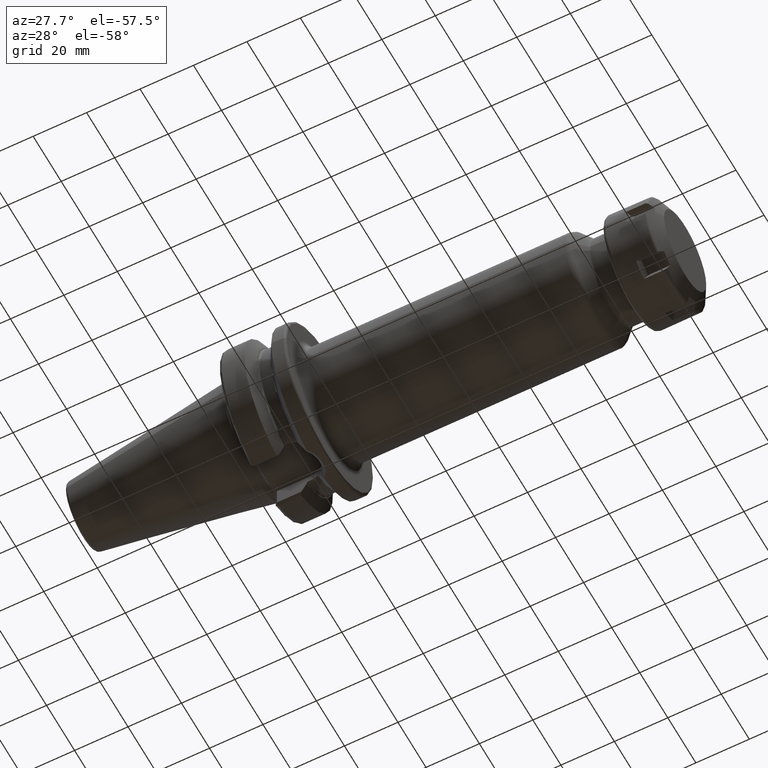
[diagram: clean part render]
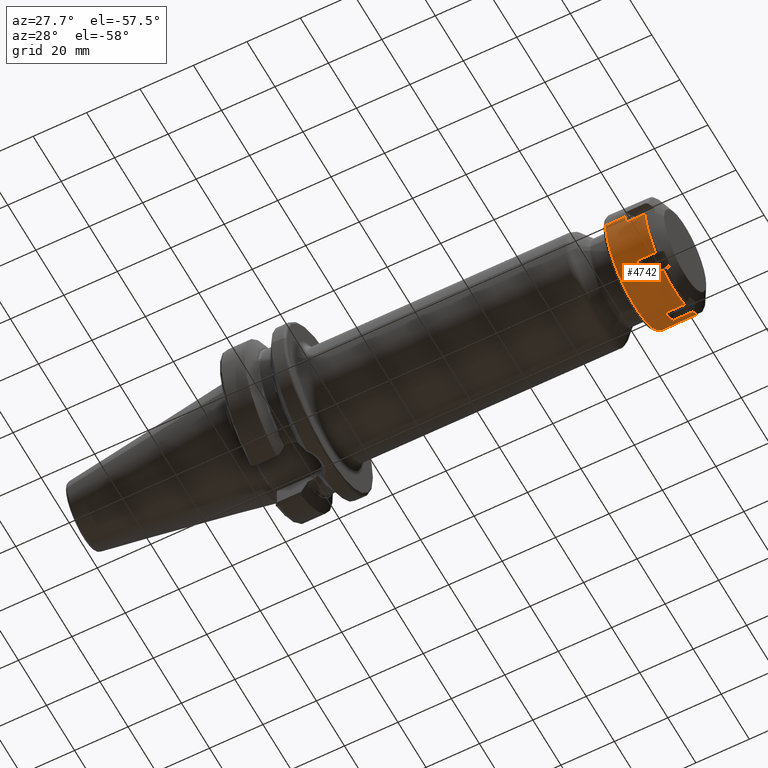
[diagram: same view with one face highlighted and labeled with its STEP entity id]
A machine part, auxiliary view. The second image highlights one B-rep face of the part: STEP entity #4742.
In plain terms, the highlighted cylindrical surface (partial cylindrical patch) has radius 21 mm, axis along (1, 0, 0).
Its self-contained STEP definition (entity closure, byte-faithful):
#3466=DIRECTION('',(9.999999999979E-1,1.452794262624E-6,-1.445246504649E-6));
#3467=VECTOR('',#3466,7.214202484702E0);
#3468=CARTESIAN_POINT('',(8.600008063689E0,7.578287451463E0,-1.958491746355E1));
#3469=LINE('',#3468,#3467);
#3482=DIRECTION('',(-1.E0,0.E0,0.E0));
#3483=VECTOR('',#3482,7.214210890546E0);
#3484=CARTESIAN_POINT('',(1.581421054838E1,1.317189611779E1,-1.635546247167E1));
#3485=LINE('',#3484,#3483);
#3564=CARTESIAN_POINT('',(1.581421054838E1,-1.317189611779E1,
-1.635546247167E1));
#3584=CARTESIAN_POINT('',(1.581421054838E1,-2.075019405E1,-3.229465418179E0));
#3586=CARTESIAN_POINT('',(1.581421054838E1,7.578297932215E0,-1.958492788985E1));
#3606=CARTESIAN_POINT('',(1.581421054838E1,-7.578297932215E0,
-1.958492788985E1));
#3614=CARTESIAN_POINT('',(1.581421054838E1,1.317189611779E1,-1.635546247167E1));
#3616=CARTESIAN_POINT('',(1.581421054838E1,2.075019405E1,-3.229465418179E0));
#3776=DIRECTION('',(-1.E0,3.594961594389E-14,0.E0));
#3777=VECTOR('',#3776,7.214210548375E0);
#3778=CARTESIAN_POINT('',(1.581421054838E1,-2.075019405E1,-3.229465418179E0));
#3779=LINE('',#3778,#3777);
#3791=CARTESIAN_POINT('',(1.581421054838E1,-1.792614389339E-14,0.E0));
#3792=DIRECTION('',(-1.E0,0.E0,0.E0));
#3793=DIRECTION('',(0.E0,9.881044785716E-1,-1.537840675323E-1));
#3794=AXIS2_PLACEMENT_3D('',#3791,#3792,#3793);
#3796=CARTESIAN_POINT('',(8.6E0,0.E0,0.E0));
#3797=DIRECTION('',(-1.E0,0.E0,0.E0));
#3798=DIRECTION('',(0.E0,1.E0,0.E0));
#3799=AXIS2_PLACEMENT_3D('',#3796,#3797,#3798);
#3801=DIRECTION('',(-1.E0,9.411549393136E-12,6.000804948597E-11));
#3802=VECTOR('',#3801,7.350000000040E0);
#3803=CARTESIAN_POINT('',(8.600000000040E0,2.099999999993E1,
-4.377820052165E-10));
#3804=LINE('',#3803,#3802);
#3805=CARTESIAN_POINT('',(1.25E0,0.E0,0.E0));
#3806=DIRECTION('',(-1.E0,0.E0,0.E0));
#3807=DIRECTION('',(0.E0,1.E0,0.E0));
#3808=AXIS2_PLACEMENT_3D('',#3805,#3806,#3807);
#3810=DIRECTION('',(-1.E0,-9.436200875805E-12,-6.000654573246E-11));
#3811=VECTOR('',#3810,7.350000000040E0);
#3812=CARTESIAN_POINT('',(8.600000000040E0,-2.099999999993E1,
4.377679851591E-10));
#3813=LINE('',#3812,#3811);
#3814=CARTESIAN_POINT('',(8.6E0,0.E0,0.E0));
#3815=DIRECTION('',(-1.E0,0.E0,0.E0));
#3816=DIRECTION('',(0.E0,-9.881044785716E-1,-1.537840675323E-1));
#3817=AXIS2_PLACEMENT_3D('',#3814,#3815,#3816);
#3819=CARTESIAN_POINT('',(1.581421054838E1,-1.792614389339E-14,0.E0));
#3820=DIRECTION('',(-1.E0,0.E0,0.E0));
#3821=DIRECTION('',(0.E0,-6.272331484661E-1,-7.788315462700E-1));
#3822=AXIS2_PLACEMENT_3D('',#3819,#3820,#3821);
#3824=CARTESIAN_POINT('',(1.581421054838E1,-1.792614389339E-14,0.E0));
#3825=DIRECTION('',(-1.E0,0.E0,0.E0));
#3826=DIRECTION('',(0.E0,3.608713301055E-1,-9.326156138023E-1));
#3827=AXIS2_PLACEMENT_3D('',#3824,#3825,#3826);
#3846=CARTESIAN_POINT('',(8.600000318507E0,-1.804967895792E-5,
1.352930437069E-5));
#3847=DIRECTION('',(-1.E0,0.E0,0.E0));
#3848=DIRECTION('',(0.E0,6.272333551021E-1,-7.788313798553E-1));
#3849=AXIS2_PLACEMENT_3D('',#3846,#3847,#3848);
#3865=DIRECTION('',(1.E0,0.E0,0.E0));
#3866=VECTOR('',#3865,7.214210548375E0);
#3867=CARTESIAN_POINT('',(8.6E0,2.075019405E1,-3.229465418179E0));
#3868=LINE('',#3867,#3866);
#4090=DIRECTION('',(9.999999999998E-1,6.709444709144E-7,9.098406604267E-8));
#4091=VECTOR('',#4090,7.214212575504E0);
#4092=CARTESIAN_POINT('',(8.599997972873E0,-1.317190095812E1,
-1.635546312805E1));
#4093=LINE('',#4092,#4091);
#4106=DIRECTION('',(-1.E0,0.E0,0.E0));
#4107=VECTOR('',#4106,7.214210815093E0);
#4108=CARTESIAN_POINT('',(1.581421054838E1,-7.578297932215E0,
-1.958492788985E1));
#4109=LINE('',#4108,#4107);
#4139=CARTESIAN_POINT('',(8.600000222181E0,-7.035000469932E-6,
-1.879731692430E-6));
#4140=DIRECTION('',(-1.E0,0.E0,0.E0));
#4141=DIRECTION('',(0.E0,-3.608710688571E-1,-9.326157148911E-1));
#4142=AXIS2_PLACEMENT_3D('',#4139,#4140,#4141);
#4158=CARTESIAN_POINT('',(1.25E0,2.1E1,0.E0));
#4159=CARTESIAN_POINT('',(1.25E0,-2.1E1,0.E0));
#4160=VERTEX_POINT('',#4158);
#4161=VERTEX_POINT('',#4159);
#4168=VERTEX_POINT('',#3616);
#4169=CARTESIAN_POINT('',(8.6E0,2.1E1,0.E0));
#4170=CARTESIAN_POINT('',(8.6E0,2.075019405E1,-3.229465418179E0));
#4171=VERTEX_POINT('',#4169);
#4172=VERTEX_POINT('',#4170);
#4213=VERTEX_POINT('',#3584);
#4214=CARTESIAN_POINT('',(8.6E0,-2.1E1,0.E0));
#4216=VERTEX_POINT('',#4214);
#4218=CARTESIAN_POINT('',(8.6E0,-2.075019405E1,-3.229465418179E0));
#4219=VERTEX_POINT('',#4218);
#4228=VERTEX_POINT('',#3564);
#4229=VERTEX_POINT('',#3606);
#4230=CARTESIAN_POINT('',(8.600000222181E0,-7.578297626635E0,
-1.958492710012E1));
#4231=CARTESIAN_POINT('',(8.600000222181E0,-1.317189658068E1,
-1.635546304645E1));
#4232=VERTEX_POINT('',#4230);
#4233=VERTEX_POINT('',#4231);
#4242=VERTEX_POINT('',#3586);
#4243=VERTEX_POINT('',#3614);
#4244=CARTESIAN_POINT('',(8.600000318507E0,1.317189540004E1,-1.635546158045E1));
#4245=CARTESIAN_POINT('',(8.600000318507E0,7.578298503418E0,-1.958492936603E1));
#4246=VERTEX_POINT('',#4244);
#4247=VERTEX_POINT('',#4245);
#4709=CARTESIAN_POINT('',(-1.E0,0.E0,0.E0));
#4710=DIRECTION('',(1.E0,0.E0,0.E0));
#4711=DIRECTION('',(0.E0,-1.E0,0.E0));
#4712=AXIS2_PLACEMENT_3D('',#4709,#4710,#4711);
#4713=CYLINDRICAL_SURFACE('',#4712,2.1E1);
#4715=ORIENTED_EDGE('',*,*,#4714,.F.);
#4716=ORIENTED_EDGE('',*,*,#4388,.F.);
#4717=ORIENTED_EDGE('',*,*,#4493,.F.);
#4719=ORIENTED_EDGE('',*,*,#4718,.F.);
#4721=ORIENTED_EDGE('',*,*,#4720,.F.);
#4723=ORIENTED_EDGE('',*,*,#4722,.T.);
#4725=ORIENTED_EDGE('',*,*,#4724,.T.);
#4727=ORIENTED_EDGE('',*,*,#4726,.F.);
#4729=ORIENTED_EDGE('',*,*,#4728,.F.);
#4730=ORIENTED_EDGE('',*,*,#4689,.F.);
#4731=ORIENTED_EDGE('',*,*,#4462,.F.);
#4733=ORIENTED_EDGE('',*,*,#4732,.F.);
#4735=ORIENTED_EDGE('',*,*,#4734,.F.);
#4737=ORIENTED_EDGE('',*,*,#4736,.F.);
#4738=ORIENTED_EDGE('',*,*,#4476,.F.);
#4739=ORIENTED_EDGE('',*,*,#4312,.F.);
#4740=EDGE_LOOP('',(#4715,#4716,#4717,#4719,#4721,#4723,#4725,#4727,#4729,#4730,
#4731,#4733,#4735,#4737,#4738,#4739));
#4741=FACE_OUTER_BOUND('',#4740,.F.);
#4742=ADVANCED_FACE('',(#4741),#4713,.T.);
#3795=CIRCLE('',#3794,2.1E1);
#3800=CIRCLE('',#3799,2.1E1);
#3809=CIRCLE('',#3808,2.1E1);
#3818=CIRCLE('',#3817,2.1E1);
#3823=CIRCLE('',#3822,2.1E1);
#3828=CIRCLE('',#3827,2.1E1);
#3850=CIRCLE('',#3849,2.100002071410E1);
#4143=CIRCLE('',#4142,2.099999486142E1);
#4312=EDGE_CURVE('',#4247,#4242,#3469,.T.);
#4388=EDGE_CURVE('',#4243,#4246,#3485,.T.);
#4462=EDGE_CURVE('',#4228,#4213,#3823,.T.);
#4476=EDGE_CURVE('',#4242,#4229,#3828,.T.);
#4493=EDGE_CURVE('',#4168,#4243,#3795,.T.);
#4689=EDGE_CURVE('',#4213,#4219,#3779,.T.);
#4714=EDGE_CURVE('',#4246,#4247,#3850,.T.);
#4718=EDGE_CURVE('',#4172,#4168,#3868,.T.);
#4720=EDGE_CURVE('',#4171,#4172,#3800,.T.);
#4722=EDGE_CURVE('',#4171,#4160,#3804,.T.);
#4724=EDGE_CURVE('',#4160,#4161,#3809,.T.);
#4726=EDGE_CURVE('',#4216,#4161,#3813,.T.);
#4728=EDGE_CURVE('',#4219,#4216,#3818,.T.);
#4732=EDGE_CURVE('',#4233,#4228,#4093,.T.);
#4734=EDGE_CURVE('',#4232,#4233,#4143,.T.);
#4736=EDGE_CURVE('',#4229,#4232,#4109,.T.);